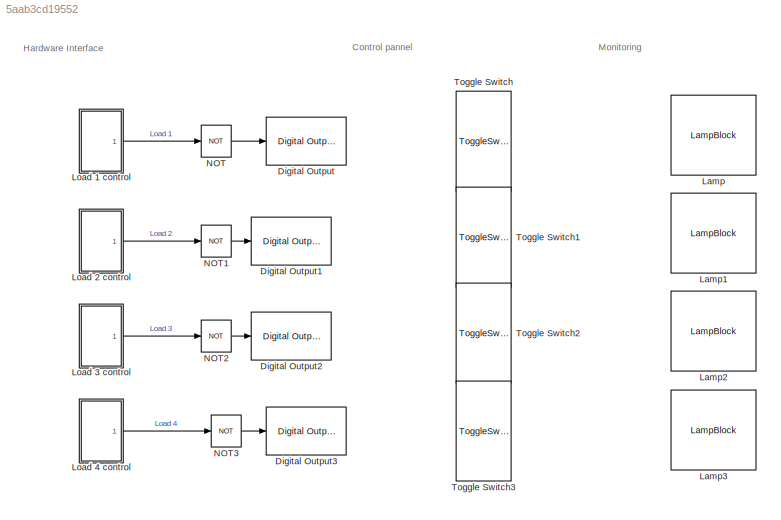
MODEL slx_5aab3cd19552
KIND model
CONFIG AbsTol = auto
CONFIG EnableMultiTasking = on
CONFIG FixedStep = auto
CONFIG MaxStep = auto
CONFIG MinStep = auto
CONFIG RelTol = 1e-3
CONFIG SampleTimeConstraint = Unconstrained
CONFIG Solver = FixedStepAuto
CONFIG SolverName = FixedStepAuto
CONFIG StartTime = 0.0
CONFIG StopTime = inf
BLOCK [Reference] Digital Output  REF=arduinolib/Digital Output
  Ports = [1]
  SourceBlock = arduinolib/Digital Output
  SourceProductBaseCode = ARDUINO
  SourceProductName = Simulink Support Package for Arduino Hardware
  SourceType = Arduino Digital Output
BLOCK [Reference] Digital Output1  REF=arduinolib/Digital Output
  Ports = [1]
  SourceBlock = arduinolib/Digital Output
  SourceProductBaseCode = ARDUINO
  SourceProductName = Simulink Support Package for Arduino Hardware
  SourceType = Arduino Digital Output
BLOCK [Reference] Digital Output2  REF=arduinolib/Digital Output
  Ports = [1]
  SourceBlock = arduinolib/Digital Output
  SourceProductBaseCode = ARDUINO
  SourceProductName = Simulink Support Package for Arduino Hardware
  SourceType = Arduino Digital Output
BLOCK [Reference] Digital Output3  REF=arduinolib/Digital Output
  Ports = [1]
  SourceBlock = arduinolib/Digital Output
  SourceProductBaseCode = ARDUINO
  SourceProductName = Simulink Support Package for Arduino Hardware
  SourceType = Arduino Digital Output
BLOCK [LampBlock] Lamp
BLOCK [LampBlock] Lamp1
BLOCK [LampBlock] Lamp2
BLOCK [LampBlock] Lamp3
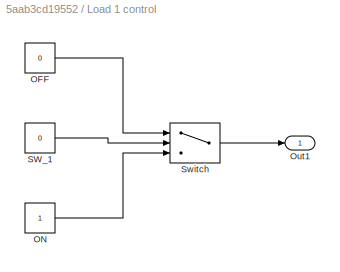
BLOCK [SubSystem] Load 1 control
  Ports = [0, 1]
  RequestExecContextInheritance = off
BLOCK [Constant] Load 1 control/OFF
  Value = 0
BLOCK [Constant] Load 1 control/ON
BLOCK [Outport] Load 1 control/Out1
  IconDisplay = Port number
BLOCK [Constant] Load 1 control/SW_1
  Value = 0
BLOCK [Switch] Load 1 control/Switch
  Criteria = u2 > Threshold
  InputSameDT = off
  SaturateOnIntegerOverflow = off
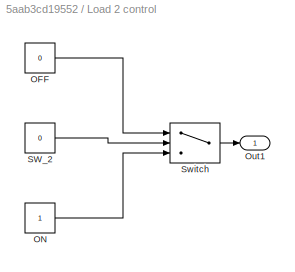
BLOCK [SubSystem] Load 2 control
  Ports = [0, 1]
  RequestExecContextInheritance = off
BLOCK [Constant] Load 2 control/OFF
  Value = 0
BLOCK [Constant] Load 2 control/ON
BLOCK [Outport] Load 2 control/Out1
  IconDisplay = Port number
BLOCK [Constant] Load 2 control/SW_2
  Value = 0
BLOCK [Switch] Load 2 control/Switch
  Criteria = u2 > Threshold
  InputSameDT = off
  SaturateOnIntegerOverflow = off
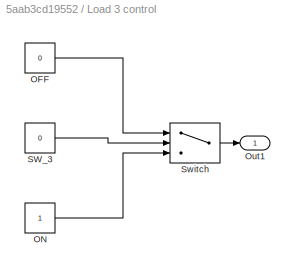
BLOCK [SubSystem] Load 3 control
  Ports = [0, 1]
  RequestExecContextInheritance = off
BLOCK [Constant] Load 3 control/OFF
  Value = 0
BLOCK [Constant] Load 3 control/ON
BLOCK [Outport] Load 3 control/Out1
  IconDisplay = Port number
BLOCK [Constant] Load 3 control/SW_3
  Value = 0
BLOCK [Switch] Load 3 control/Switch
  Criteria = u2 > Threshold
  InputSameDT = off
  SaturateOnIntegerOverflow = off
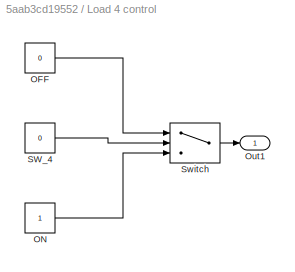
BLOCK [SubSystem] Load 4 control
  Ports = [0, 1]
  RequestExecContextInheritance = off
BLOCK [Constant] Load 4 control/OFF
  Value = 0
BLOCK [Constant] Load 4 control/ON
BLOCK [Outport] Load 4 control/Out1
  IconDisplay = Port number
BLOCK [Constant] Load 4 control/SW_4
  Value = 0
BLOCK [Switch] Load 4 control/Switch
  Criteria = u2 > Threshold
  InputSameDT = off
  SaturateOnIntegerOverflow = off
BLOCK [Logic] NOT
  AllPortsSameDT = off
  IconShape = distinctive
  Operator = NOT
  OutDataTypeStr = boolean
  Ports = [1, 1]
BLOCK [Logic] NOT1
  AllPortsSameDT = off
  IconShape = distinctive
  Operator = NOT
  OutDataTypeStr = boolean
  Ports = [1, 1]
BLOCK [Logic] NOT2
  AllPortsSameDT = off
  IconShape = distinctive
  Operator = NOT
  OutDataTypeStr = boolean
  Ports = [1, 1]
BLOCK [Logic] NOT3
  AllPortsSameDT = off
  IconShape = distinctive
  Operator = NOT
  OutDataTypeStr = boolean
  Ports = [1, 1]
BLOCK [ToggleSwitchBlock] Toggle Switch
  LabelPosition = Hide
BLOCK [ToggleSwitchBlock] Toggle Switch1
  LabelPosition = Hide
BLOCK [ToggleSwitchBlock] Toggle Switch2
  LabelPosition = Hide
BLOCK [ToggleSwitchBlock] Toggle Switch3
  LabelPosition = Hide
ANNOTATION (root): Control pannel
ANNOTATION (root): Hardware Interface
ANNOTATION (root): Monitoring
LINE Load 1 control/OFF:1 -> Load 1 control/Switch:1
LINE Load 1 control/ON:1 -> Load 1 control/Switch:3
LINE Load 1 control/SW_1:1 -> Load 1 control/Switch:2
LINE Load 1 control/Switch:1 -> Load 1 control/Out1:1
LINE Load 1 control:1 -> NOT:1
LINE Load 2 control/OFF:1 -> Load 2 control/Switch:1
LINE Load 2 control/ON:1 -> Load 2 control/Switch:3
LINE Load 2 control/SW_2:1 -> Load 2 control/Switch:2
LINE Load 2 control/Switch:1 -> Load 2 control/Out1:1
LINE Load 2 control:1 -> NOT1:1
LINE Load 3 control/OFF:1 -> Load 3 control/Switch:1
LINE Load 3 control/ON:1 -> Load 3 control/Switch:3
LINE Load 3 control/SW_3:1 -> Load 3 control/Switch:2
LINE Load 3 control/Switch:1 -> Load 3 control/Out1:1
LINE Load 3 control:1 -> NOT2:1
LINE Load 4 control/OFF:1 -> Load 4 control/Switch:1
LINE Load 4 control/ON:1 -> Load 4 control/Switch:3
LINE Load 4 control/SW_4:1 -> Load 4 control/Switch:2
LINE Load 4 control/Switch:1 -> Load 4 control/Out1:1
LINE Load 4 control:1 -> NOT3:1
LINE NOT1:1 -> Digital Output1:1
LINE NOT2:1 -> Digital Output2:1
LINE NOT3:1 -> Digital Output3:1
LINE NOT:1 -> Digital Output:1
